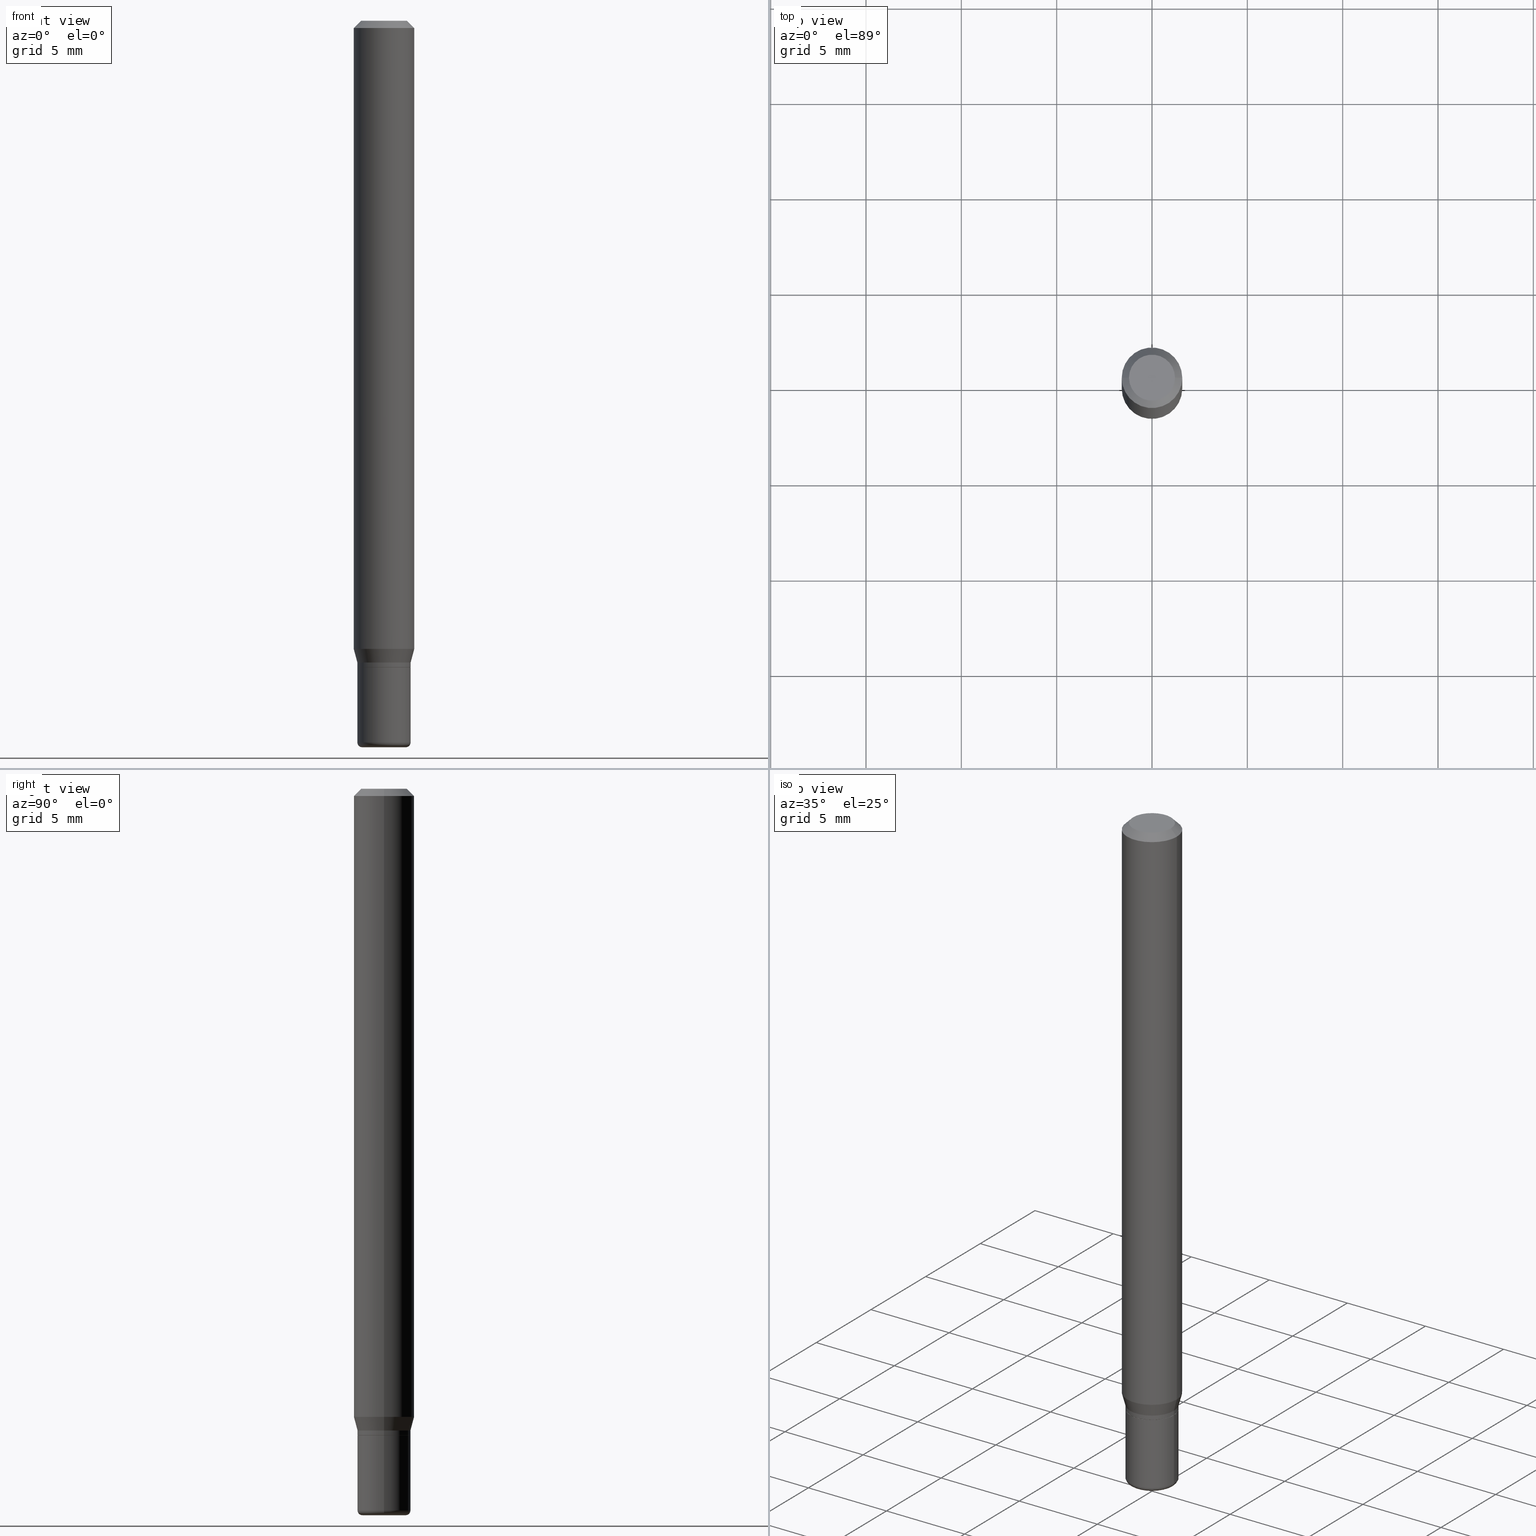
[diagram: canonical four-view strip — front | top / right | iso, engineering-drawing reading convention]
A machine part, canonical four-view strip (front | top / right | iso — engineering-drawing reading convention). The complete STEP part file that produces these views, byte-faithful:
ISO-10303-21;
HEADER;
FILE_DESCRIPTION (( 'STEP AP203' ),
    '1' );
FILE_NAME ('08613.STEP',
    '2024-02-29T19:59:43',
    ( '' ),
    ( '' ),
    'SwSTEP 2.0',
    'SolidWorks 2023',
    '' );
FILE_SCHEMA (( 'CONFIG_CONTROL_DESIGN' ));
ENDSEC;

DATA;
#1 = DIRECTION ( 'NONE',  ( -2.445468806185136597E-29, 3.491481338843145583E-15, 1.000000000000000000 ) ) ;
#2 = DIRECTION ( 'NONE',  ( -0.2588190451025210170, 5.211531920934547886E-15, 0.9659258262890682012 ) ) ;
#3 = CARTESIAN_POINT ( 'NONE',  ( 3.263478121854064398E-29, -4.659381846686176830E-15, -1.334500000000000020 ) ) ;
#4 = DIRECTION ( 'NONE',  ( 1.000000000000000000, -6.982962677686273810E-15, 0.000000000000000000 ) ) ;
#5 = CONICAL_SURFACE ( 'NONE', #28, 0.06250000000000000000, 0.7853981633974488341 ) ;
#6 = ADVANCED_FACE ( 'NONE', ( #397 ), #63, .T. ) ;
#7 = PRODUCT_DEFINITION_SHAPE ( 'NONE', 'NONE',  #337 ) ;
#8 = FACE_OUTER_BOUND ( 'NONE', #151, .T. ) ;
#9 = DIRECTION ( 'NONE',  ( -1.000000000000000000, 6.982962677686266711E-15, 0.000000000000000000 ) ) ;
#10 = CARTESIAN_POINT ( 'NONE',  ( -0.06250000000000000000, 3.840629472727455270E-16, -0.01499999999999970281 ) ) ;
#11 = CARTESIAN_POINT ( 'NONE',  ( 3.240246168195306775E-29, -4.626212773967169051E-15, -1.325000000000000178 ) ) ;
#12 = DIRECTION ( 'NONE',  ( 1.000000000000000000, -6.982962677686266711E-15, 0.000000000000000000 ) ) ;
#13 = LINE ( 'NONE', #223, #466 ) ;
#14 = CIRCLE ( 'NONE', #398, 0.04499999999999999833 ) ;
#15 = DATE_AND_TIME ( #102, #467 ) ;
#16 = DIRECTION ( 'NONE',  ( -2.445468806185136597E-29, 3.491481338843145583E-15, 1.000000000000000000 ) ) ;
#17 = ORIENTED_EDGE ( 'NONE', *, *, #127, .T. ) ;
#18 = CARTESIAN_POINT ( 'NONE',  ( 3.582686580359766038E-29, -5.359686688179453325E-15, -1.500000000000000222 ) ) ;
#19 = APPLICATION_PROTOCOL_DEFINITION ( 'international standard', 'config_control_design', 1994, #394 ) ;
#20 = DIRECTION ( 'NONE',  ( -1.000000000000000000, 6.982962677686266711E-15, 0.000000000000000000 ) ) ;
#21 = VERTEX_POINT ( 'NONE', #486 ) ;
#22 = CC_DESIGN_PERSON_AND_ORGANIZATION_ASSIGNMENT ( #228, #155, ( #83 ) ) ;
#23 = COORDINATED_UNIVERSAL_TIME_OFFSET ( 5, 0, .BEHIND. ) ;
#24 = AXIS2_PLACEMENT_3D ( 'NONE', #321, #165, #482 ) ;
#25 = AXIS2_PLACEMENT_3D ( 'NONE', #38, #84, #268 ) ;
#26 = DIRECTION ( 'NONE',  ( 1.000000000000000000, -6.982962677686265922E-15, 4.876176775795935232E-29 ) ) ;
#27 = DATE_AND_TIME ( #307, #35 ) ;
#28 = AXIS2_PLACEMENT_3D ( 'NONE', #275, #447, #20 ) ;
#29 = AXIS2_PLACEMENT_3D ( 'NONE', #295, #180, #134 ) ;
#30 = EDGE_LOOP ( 'NONE', ( #258, #382 ) ) ;
#31 = COORDINATED_UNIVERSAL_TIME_OFFSET ( 5, 0, .BEHIND. ) ;
#32 = ADVANCED_BREP_SHAPE_REPRESENTATION ( '08613', ( #462, #443, #320 ), #73 ) ;
#33 = EDGE_CURVE ( 'NONE', #492, #54, #293, .T. ) ;
#34 = CONICAL_SURFACE ( 'NONE', #262, 0.05499999999999999334, 0.2617993877991496854 ) ;
#35 = LOCAL_TIME ( 14, 59, 43.00000000000000000, #465 ) ;
#36 = CARTESIAN_POINT ( 'NONE',  ( -0.05449999999999997208, -4.273881796366344571E-15, -1.335000000000000187 ) ) ;
#37 = CARTESIAN_POINT ( 'NONE',  ( 3.264700856257157760E-29, -4.661127587355599122E-15, -1.335000000000000187 ) ) ;
#38 = CARTESIAN_POINT ( 'NONE',  ( 3.264700856257157760E-29, -4.661127587355599122E-15, -1.335000000000000187 ) ) ;
#39 = LINE ( 'NONE', #10, #82 ) ;
#40 = UNCERTAINTY_MEASURE_WITH_UNIT (LENGTH_MEASURE( 1.000000000000000082E-05 ), #505, 'distance_accuracy_value', 'NONE');
#41 = DIRECTION ( 'NONE',  ( -2.445468806185136597E-29, 3.491481338843145583E-15, 1.000000000000000000 ) ) ;
#42 = DIRECTION ( 'NONE',  ( -2.445468806185136597E-29, 3.491481338843145583E-15, 1.000000000000000000 ) ) ;
#43 = FACE_OUTER_BOUND ( 'NONE', #193, .T. ) ;
#44 = AXIS2_PLACEMENT_3D ( 'NONE', #323, #235, #487 ) ;
#45 = LOCAL_TIME ( 14, 59, 43.00000000000000000, #31 ) ;
#46 = CARTESIAN_POINT ( 'NONE',  ( 3.840629472727772786E-16, 0.05499999999999534428, -1.335000000000000409 ) ) ;
#47 = ORIENTED_EDGE ( 'NONE', *, *, #195, .F. ) ;
#48 = DIRECTION ( 'NONE',  ( 1.000000000000000000, -6.982962677686265922E-15, 4.876176775795935793E-29 ) ) ;
#49 = DIRECTION ( 'NONE',  ( 1.000000000000000000, -6.982962677686265922E-15, 4.876176775795935793E-29 ) ) ;
#50 = ORIENTED_EDGE ( 'NONE', *, *, #273, .F. ) ;
#51 = ADVANCED_FACE ( 'NONE', ( #206 ), #280, .T. ) ;
#52 = DIRECTION ( 'NONE',  ( 1.000000000000000000, -6.982962677686269077E-15, 0.000000000000000000 ) ) ;
#53 = AXIS2_PLACEMENT_3D ( 'NONE', #285, #338, #144 ) ;
#54 = VERTEX_POINT ( 'NONE', #236 ) ;
#55 = CIRCLE ( 'NONE', #29, 0.009999999999999953371 ) ;
#56 = DIRECTION ( 'NONE',  ( -2.445468806185136877E-29, 3.491481338843145188E-15, 1.000000000000000000 ) ) ;
#57 = DIRECTION ( 'NONE',  ( 1.000000000000000000, -6.982962677686262766E-15, 0.000000000000000000 ) ) ;
#58 = EDGE_LOOP ( 'NONE', ( #461, #286, #47, #294 ) ) ;
#59 = CALENDAR_DATE ( 2024, 29, 2 ) ;
#60 = FACE_OUTER_BOUND ( 'NONE', #221, .T. ) ;
#61 = ORIENTED_EDGE ( 'NONE', *, *, #220, .F. ) ;
#62 = DATE_TIME_ROLE ( 'creation_date' ) ;
#63 = CONICAL_SURFACE ( 'NONE', #25, 0.05449999999999997208, 0.7853981633972775267 ) ;
#64 =( LENGTH_UNIT ( ) NAMED_UNIT ( * ) SI_UNIT ( $, .METRE. ) );
#65 = CIRCLE ( 'NONE', #92, 0.05499999999999997946 ) ;
#66 = LOCAL_TIME ( 14, 59, 43.00000000000000000, #224 ) ;
#67 = PERSON_AND_ORGANIZATION ( #342, #312 ) ;
#68 = PRODUCT_RELATED_PRODUCT_CATEGORY ( 'detail', '', ( #406 ) ) ;
#69 = EDGE_LOOP ( 'NONE', ( #190, #264 ) ) ;
#70 = COORDINATED_UNIVERSAL_TIME_OFFSET ( 5, 0, .BEHIND. ) ;
#71 = VERTEX_POINT ( 'NONE', #401 ) ;
#72 = VECTOR ( 'NONE', #240, 39.37007874015748143 ) ;
#73 =( GEOMETRIC_REPRESENTATION_CONTEXT ( 3 ) GLOBAL_UNCERTAINTY_ASSIGNED_CONTEXT ( ( #40 ) ) GLOBAL_UNIT_ASSIGNED_CONTEXT ( ( #505, #174, #333 ) ) REPRESENTATION_CONTEXT ( 'NONE', 'WORKASPACE' ) );
#74 = EDGE_LOOP ( 'NONE', ( #191, #299, #277, #154 ) ) ;
#75 = DATE_TIME_ROLE ( 'classification_date' ) ;
#76 = VERTEX_POINT ( 'NONE', #91 ) ;
#77 = EDGE_CURVE ( 'NONE', #141, #396, #318, .T. ) ;
#78 = ADVANCED_FACE ( 'NONE', ( #43 ), #161, .T. ) ;
#79 = APPROVAL_DATE_TIME ( #506, #208 ) ;
#80 = LINE ( 'NONE', #36, #188 ) ;
#81 = CARTESIAN_POINT ( 'NONE',  ( 3.240246168195306775E-29, -4.626212773967169051E-15, -1.325000000000000178 ) ) ;
#82 = VECTOR ( 'NONE', #402, 39.37007874015748143 ) ;
#83 = PRODUCT_DEFINITION_FORMATION_WITH_SPECIFIED_SOURCE ( 'ANY', '', #406, .NOT_KNOWN. ) ;
#84 = DIRECTION ( 'NONE',  ( -2.445468806185136597E-29, 3.491481338843145583E-15, 1.000000000000000000 ) ) ;
#85 = ADVANCED_FACE ( 'NONE', ( #368 ), #207, .T. ) ;
#86 = DIRECTION ( 'NONE',  ( -2.445468806185136877E-29, 3.491481338843145188E-15, 1.000000000000000000 ) ) ;
#87 = DIRECTION ( 'NONE',  ( -0.7071067811864267805, 7.493145998869918709E-15, 0.7071067811866682540 ) ) ;
#88 = LINE ( 'NONE', #124, #72 ) ;
#89 = DIRECTION ( 'NONE',  ( 1.000000000000000000, -6.982962677686265922E-15, 4.876176775795935232E-29 ) ) ;
#90 = DIRECTION ( 'NONE',  ( -2.445468806185136597E-29, 3.491481338843145583E-15, 1.000000000000000000 ) ) ;
#91 = CARTESIAN_POINT ( 'NONE',  ( 0.05449999999999997208, -5.041699053289501100E-15, -1.335000000000000187 ) ) ;
#92 = AXIS2_PLACEMENT_3D ( 'NONE', #424, #135, #249 ) ;
#93 = DIRECTION ( 'NONE',  ( 1.000000000000000000, -6.982962677686273810E-15, 0.000000000000000000 ) ) ;
#94 = DIRECTION ( 'NONE',  ( -2.445468806185136877E-29, 3.491481338843145188E-15, 1.000000000000000000 ) ) ;
#95 = CARTESIAN_POINT ( 'NONE',  ( 3.668203209277704895E-29, -5.237222008264718177E-15, -1.500000000000000222 ) ) ;
#96 = DIRECTION ( 'NONE',  ( -2.445468806185136877E-29, 3.491481338843145188E-15, 1.000000000000000000 ) ) ;
#97 = CIRCLE ( 'NONE', #339, 0.04499999999999999833 ) ;
#98 = SECURITY_CLASSIFICATION ( '', '', #192 ) ;
#99 = CLOSED_SHELL ( 'NONE', ( #436, #226, #350, #103, #51, #227 ) ) ;
#100 = MECHANICAL_CONTEXT ( 'NONE', #394, 'mechanical' ) ;
#101 = CARTESIAN_POINT ( 'NONE',  ( 0.04750000000000000749, -4.035134999187568762E-16, 2.731847993664288856E-16 ) ) ;
#102 = CALENDAR_DATE ( 2024, 29, 2 ) ;
#103 = ADVANCED_FACE ( 'NONE', ( #166 ), #125, .T. ) ;
#104 = DIRECTION ( 'NONE',  ( 0.000000000000000000, 0.000000000000000000, 1.000000000000000000 ) ) ;
#105 = EDGE_CURVE ( 'NONE', #76, #231, #376, .T. ) ;
#106 = AXIS2_PLACEMENT_3D ( 'NONE', #233, #370, #120 ) ;
#107 = AXIS2_PLACEMENT_3D ( 'NONE', #278, #411, #441 ) ;
#108 = ORIENTED_EDGE ( 'NONE', *, *, #105, .T. ) ;
#109 = APPROVAL_ROLE ( '' ) ;
#110 = EDGE_CURVE ( 'NONE', #141, #470, #442, .T. ) ;
#111 = ORIENTED_EDGE ( 'NONE', *, *, #313, .F. ) ;
#112 = ORIENTED_EDGE ( 'NONE', *, *, #412, .F. ) ;
#113 = CIRCLE ( 'NONE', #356, 0.05499999999999995171 ) ;
#114 = EDGE_CURVE ( 'NONE', #21, #492, #488, .T. ) ;
#115 = ORIENTED_EDGE ( 'NONE', *, *, #110, .F. ) ;
#116 = ORIENTED_EDGE ( 'NONE', *, *, #380, .T. ) ;
#117 = FACE_OUTER_BOUND ( 'NONE', #232, .T. ) ;
#118 = EDGE_CURVE ( 'NONE', #231, #514, #80, .T. ) ;
#119 = CARTESIAN_POINT ( 'NONE',  ( -0.06250000000000000000, -1.846339340611439838E-15, -0.01499999999999970281 ) ) ;
#120 = DIRECTION ( 'NONE',  ( 1.000000000000000000, -6.982962677686273810E-15, 0.000000000000000000 ) ) ;
#121 = DIRECTION ( 'NONE',  ( 1.000000000000000000, -6.982962677686263555E-15, 0.000000000000000000 ) ) ;
#122 = EDGE_CURVE ( 'NONE', #348, #471, #427, .T. ) ;
#123 = CARTESIAN_POINT ( 'NONE',  ( -0.05499999999999999334, -4.159904970144704999E-15, -1.325000000000000178 ) ) ;
#124 = CARTESIAN_POINT ( 'NONE',  ( 0.05449999999999997208, -5.041699053289501100E-15, -1.335000000000000187 ) ) ;
#125 = CYLINDRICAL_SURFACE ( 'NONE', #480, 0.05499999999999997946 ) ;
#126 = FACE_OUTER_BOUND ( 'NONE', #301, .T. ) ;
#127 = EDGE_CURVE ( 'NONE', #71, #246, #14, .T. ) ;
#128 = CARTESIAN_POINT ( 'NONE',  ( -0.04750000000000000749, 3.578768372314221353E-16, 2.731847993664239060E-16 ) ) ;
#129 = CIRCLE ( 'NONE', #328, 0.05449999999999997208 ) ;
#130 = EDGE_CURVE ( 'NONE', #231, #76, #129, .T. ) ;
#131 = LOCAL_TIME ( 14, 59, 43.00000000000000000, #70 ) ;
#132 = DIRECTION ( 'NONE',  ( -2.445468806185136597E-29, 3.491481338843145583E-15, 1.000000000000000000 ) ) ;
#133 = FACE_OUTER_BOUND ( 'NONE', #244, .T. ) ;
#134 = DIRECTION ( 'NONE',  ( -1.000000000000000000, 7.105427357600958471E-15, 0.000000000000000000 ) ) ;
#135 = DIRECTION ( 'NONE',  ( -2.445468806185136597E-29, 3.491481338843145583E-15, 1.000000000000000000 ) ) ;
#136 = ORIENTED_EDGE ( 'NONE', *, *, #372, .T. ) ;
#137 = EDGE_CURVE ( 'NONE', #215, #183, #171, .T. ) ;
#138 = PERSON_AND_ORGANIZATION ( #342, #312 ) ;
#139 = DIRECTION ( 'NONE',  ( -2.445468806185136597E-29, 3.491481338843145583E-15, 1.000000000000000000 ) ) ;
#140 = CIRCLE ( 'NONE', #432, 0.05499999999999999334 ) ;
#141 = VERTEX_POINT ( 'NONE', #123 ) ;
#142 = AXIS2_PLACEMENT_3D ( 'NONE', #210, #272, #89 ) ;
#143 = DIRECTION ( 'NONE',  ( -2.445468806185136597E-29, 3.491481338843145583E-15, 1.000000000000000000 ) ) ;
#144 = DIRECTION ( 'NONE',  ( 1.000000000000000000, -6.982962677686269077E-15, 0.000000000000000000 ) ) ;
#145 = ORIENTED_EDGE ( 'NONE', *, *, #110, .T. ) ;
#146 = CYLINDRICAL_SURFACE ( 'NONE', #515, 0.06250000000000000000 ) ;
#147 = CARTESIAN_POINT ( 'NONE',  ( 0.000000000000000000, 0.000000000000000000, 0.000000000000000000 ) ) ;
#148 = DATE_AND_TIME ( #438, #45 ) ;
#149 = ORIENTED_EDGE ( 'NONE', *, *, #118, .F. ) ;
#150 = ORIENTED_EDGE ( 'NONE', *, *, #220, .T. ) ;
#151 = EDGE_LOOP ( 'NONE', ( #17, #510, #50, #495 ) ) ;
#152 = CC_DESIGN_PERSON_AND_ORGANIZATION_ASSIGNMENT ( #138, #415, ( #406 ) ) ;
#153 = ORIENTED_EDGE ( 'NONE', *, *, #273, .T. ) ;
#154 = ORIENTED_EDGE ( 'NONE', *, *, #413, .F. ) ;
#155 = PERSON_AND_ORGANIZATION_ROLE ( 'design_supplier' ) ;
#156 = AXIS2_PLACEMENT_3D ( 'NONE', #284, #204, #367 ) ;
#157 = CC_DESIGN_APPROVAL ( #208, ( #83 ) ) ;
#158 = ORIENTED_EDGE ( 'NONE', *, *, #122, .T. ) ;
#159 = CARTESIAN_POINT ( 'NONE',  ( -6.680649051745406845E-45, 9.538196290434862081E-31, 2.731847993664263218E-16 ) ) ;
#160 = CARTESIAN_POINT ( 'NONE',  ( 0.06250000000000000000, -4.888073874380378612E-16, -0.01499999999999970281 ) ) ;
#161 = CYLINDRICAL_SURFACE ( 'NONE', #142, 0.05499999999999998640 ) ;
#162 = DIRECTION ( 'NONE',  ( -2.445468806185136597E-29, 3.491481338843145583E-15, 1.000000000000000000 ) ) ;
#163 = AXIS2_PLACEMENT_3D ( 'NONE', #217, #456, #288 ) ;
#164 = CARTESIAN_POINT ( 'NONE',  ( 3.668203209277632395E-31, -5.237222008264614861E-17, -0.01499999999999970281 ) ) ;
#165 = DIRECTION ( 'NONE',  ( -2.445468806185136597E-29, 3.491481338843145583E-15, 1.000000000000000000 ) ) ;
#166 = FACE_OUTER_BOUND ( 'NONE', #74, .T. ) ;
#167 = DIRECTION ( 'NONE',  ( -2.445468806185136597E-29, 3.491481338843145583E-15, 1.000000000000000000 ) ) ;
#168 = DIRECTION ( 'NONE',  ( 1.000000000000000000, -6.982962677686263555E-15, 0.000000000000000000 ) ) ;
#169 = FACE_OUTER_BOUND ( 'NONE', #58, .T. ) ;
#170 = DIRECTION ( 'NONE',  ( -2.445468806185136877E-29, 3.491481338843145188E-15, 1.000000000000000000 ) ) ;
#171 = CIRCLE ( 'NONE', #419, 0.04750000000000000749 ) ;
#172 = VECTOR ( 'NONE', #271, 39.37007874015748143 ) ;
#173 = EDGE_LOOP ( 'NONE', ( #108, #457, #374, #511 ) ) ;
#174 =( NAMED_UNIT ( * ) PLANE_ANGLE_UNIT ( ) SI_UNIT ( $, .RADIAN. ) );
#175 = DIRECTION ( 'NONE',  ( -2.445468806185136597E-29, 3.491481338843145583E-15, 1.000000000000000000 ) ) ;
#176 = ADVANCED_FACE ( 'NONE', ( #117 ), #5, .T. ) ;
#177 = ORIENTED_EDGE ( 'NONE', *, *, #260, .T. ) ;
#178 = CARTESIAN_POINT ( 'NONE',  ( 0.000000000000000000, 0.000000000000000000, 0.000000000000000000 ) ) ;
#179 = CARTESIAN_POINT ( 'NONE',  ( 3.643748521215853910E-29, -5.202307194876288105E-15, -1.490000000000000213 ) ) ;
#180 = DIRECTION ( 'NONE',  ( 7.105427357601001859E-15, 1.000000000000000000, -3.491481338843145583E-15 ) ) ;
#181 = CARTESIAN_POINT ( 'NONE',  ( -0.05499999999999998640, 3.907985046680550056E-16, -2.705414299640197311E-30 ) ) ;
#182 = AXIS2_PLACEMENT_3D ( 'NONE', #11, #445, #168 ) ;
#183 = VERTEX_POINT ( 'NONE', #128 ) ;
#184 = PERSON_AND_ORGANIZATION ( #342, #312 ) ;
#185 = LENGTH_MEASURE_WITH_UNIT ( LENGTH_MEASURE( 0.02539999999999999897 ), #64 );
#186 = EDGE_CURVE ( 'NONE', #351, #470, #13, .T. ) ;
#187 = CALENDAR_DATE ( 2024, 29, 2 ) ;
#188 = VECTOR ( 'NONE', #87, 39.37007874015748143 ) ;
#189 = CC_DESIGN_APPROVAL ( #298, ( #98 ) ) ;
#190 = ORIENTED_EDGE ( 'NONE', *, *, #430, .T. ) ;
#191 = ORIENTED_EDGE ( 'NONE', *, *, #504, .F. ) ;
#192 = SECURITY_CLASSIFICATION_LEVEL ( 'unclassified' ) ;
#193 = EDGE_LOOP ( 'NONE', ( #136, #150, #112, #403 ) ) ;
#194 = ORIENTED_EDGE ( 'NONE', *, *, #186, .T. ) ;
#195 = EDGE_CURVE ( 'NONE', #501, #396, #205, .T. ) ;
#196 = ORIENTED_EDGE ( 'NONE', *, *, #380, .F. ) ;
#197 = PERSON_AND_ORGANIZATION_ROLE ( 'classification_officer' ) ;
#198 = AXIS2_PLACEMENT_3D ( 'NONE', #253, #175, #283 ) ;
#199 = DIRECTION ( 'NONE',  ( 1.000000000000000000, -6.982962677686266711E-15, 0.000000000000000000 ) ) ;
#200 = PLANE ( 'NONE',  #489 ) ;
#201 = CARTESIAN_POINT ( 'NONE',  ( 3.643748521215853910E-29, -5.202307194876288105E-15, -1.490000000000000213 ) ) ;
#202 = FACE_OUTER_BOUND ( 'NONE', #69, .T. ) ;
#203 = DIRECTION ( 'NONE',  ( 1.000000000000000000, -6.982962677686269077E-15, 0.000000000000000000 ) ) ;
#204 = DIRECTION ( 'NONE',  ( -2.445468806185136597E-29, 3.491481338843145583E-15, 1.000000000000000000 ) ) ;
#205 = CIRCLE ( 'NONE', #319, 0.06250000000000000000 ) ;
#206 = FACE_OUTER_BOUND ( 'NONE', #435, .T. ) ;
#207 = CONICAL_SURFACE ( 'NONE', #263, 0.06250000000000000000, 0.7853981633974488341 ) ;
#208 = APPROVAL ( #341, 'UNSPECIFIED' ) ;
#209 = LINE ( 'NONE', #446, #459 ) ;
#210 = CARTESIAN_POINT ( 'NONE',  ( 0.000000000000000000, 0.000000000000000000, 0.000000000000000000 ) ) ;
#211 = CARTESIAN_POINT ( 'NONE',  ( 3.240246168195306775E-29, -4.626212773967169051E-15, -1.325000000000000178 ) ) ;
#212 = LINE ( 'NONE', #373, #450 ) ;
#213 = ORIENTED_EDGE ( 'NONE', *, *, #413, .T. ) ;
#214 = APPROVAL_ROLE ( '' ) ;
#215 = VERTEX_POINT ( 'NONE', #101 ) ;
#216 = ADVANCED_FACE ( 'NONE', ( #60 ), #381, .T. ) ;
#217 = CARTESIAN_POINT ( 'NONE',  ( 0.04499999999999999833, -5.516540515372169792E-15, -1.490000000000000213 ) ) ;
#218 = AXIS2_PLACEMENT_3D ( 'NONE', #18, #219, #49 ) ;
#219 = DIRECTION ( 'NONE',  ( -2.438088387897960049E-29, 3.491481338843145188E-15, 1.000000000000000000 ) ) ;
#220 = EDGE_CURVE ( 'NONE', #514, #141, #491, .T. ) ;
#221 = EDGE_LOOP ( 'NONE', ( #310, #512, #332, #111 ) ) ;
#222 = CARTESIAN_POINT ( 'NONE',  ( 0.06250000000000000000, -4.964920048195750682E-15, -1.297009618943233633 ) ) ;
#223 = CARTESIAN_POINT ( 'NONE',  ( 0.05499999999999998640, -3.840629472727445409E-16, 2.681897226687763775E-30 ) ) ;
#224 = COORDINATED_UNIVERSAL_TIME_OFFSET ( 5, 0, .BEHIND. ) ;
#225 = VECTOR ( 'NONE', #170, 39.37007874015748143 ) ;
#226 = ADVANCED_FACE ( 'NONE', ( #133 ), #334, .T. ) ;
#227 = ADVANCED_FACE ( 'NONE', ( #330 ), #248, .F. ) ;
#228 = PERSON_AND_ORGANIZATION ( #342, #312 ) ;
#229 = ORIENTED_EDGE ( 'NONE', *, *, #296, .T. ) ;
#230 = AXIS2_PLACEMENT_3D ( 'NONE', #279, #410, #371 ) ;
#231 = VERTEX_POINT ( 'NONE', #500 ) ;
#232 = EDGE_LOOP ( 'NONE', ( #437, #304, #116, #158 ) ) ;
#233 = CARTESIAN_POINT ( 'NONE',  ( 3.264700856257157760E-29, -4.661127587355599122E-15, -1.335000000000000187 ) ) ;
#234 = AXIS2_PLACEMENT_3D ( 'NONE', #46, #237, #363 ) ;
#235 = DIRECTION ( 'NONE',  ( -2.445468806185136597E-29, 3.491481338843145583E-15, 1.000000000000000000 ) ) ;
#236 = CARTESIAN_POINT ( 'NONE',  ( -0.05500000000000000028, -4.540918886447888559E-15, -1.335000000000000187 ) ) ;
#237 = DIRECTION ( 'NONE',  ( 2.438088387897960049E-29, -3.491481338843145188E-15, -1.000000000000000000 ) ) ;
#238 = ORIENTED_EDGE ( 'NONE', *, *, #504, .T. ) ;
#239 = CARTESIAN_POINT ( 'NONE',  ( 3.668203209277632395E-31, -5.237222008264614861E-17, -0.01499999999999970281 ) ) ;
#240 = DIRECTION ( 'NONE',  ( 0.7071067811864267805, -2.468850131080992517E-15, 0.7071067811866682540 ) ) ;
#241 = CC_DESIGN_PERSON_AND_ORGANIZATION_ASSIGNMENT ( #290, #458, ( #337 ) ) ;
#242 = DIRECTION ( 'NONE',  ( 1.000000000000000000, -6.982962677686268288E-15, 4.883557194083113462E-29 ) ) ;
#243 = DIRECTION ( 'NONE',  ( 1.000000000000000000, -6.982962677686266711E-15, 4.852736867747365086E-29 ) ) ;
#244 = EDGE_LOOP ( 'NONE', ( #153, #238, #391, #474 ) ) ;
#245 = AXIS2_PLACEMENT_3D ( 'NONE', #407, #42, #243 ) ;
#246 = VERTEX_POINT ( 'NONE', #497 ) ;
#247 = FACE_OUTER_BOUND ( 'NONE', #289, .T. ) ;
#248 = PLANE ( 'NONE',  #218 ) ;
#249 = DIRECTION ( 'NONE',  ( 1.000000000000000000, -6.982962677686265133E-15, 0.000000000000000000 ) ) ;
#250 = FACE_OUTER_BOUND ( 'NONE', #266, .T. ) ;
#251 = LINE ( 'NONE', #421, #426 ) ;
#252 = AXIS2_PLACEMENT_3D ( 'NONE', #239, #404, #199 ) ;
#253 = CARTESIAN_POINT ( 'NONE',  ( 0.000000000000000000, 0.000000000000000000, 0.000000000000000000 ) ) ;
#254 = EDGE_LOOP ( 'NONE', ( #265, #145, #355, #392 ) ) ;
#255 = DATE_AND_TIME ( #59, #66 ) ;
#256 = APPLICATION_CONTEXT ( 'configuration controlled 3d designs of mechanical parts and assemblies' ) ;
#257 = DIRECTION ( 'NONE',  ( 1.000000000000000000, 0.000000000000000000, 0.000000000000000000 ) ) ;
#258 = ORIENTED_EDGE ( 'NONE', *, *, #127, .F. ) ;
#259 = ORIENTED_EDGE ( 'NONE', *, *, #518, .F. ) ;
#260 = EDGE_CURVE ( 'NONE', #514, #351, #65, .T. ) ;
#261 = APPROVAL_DATE_TIME ( #27, #298 ) ;
#262 = AXIS2_PLACEMENT_3D ( 'NONE', #211, #167, #400 ) ;
#263 = AXIS2_PLACEMENT_3D ( 'NONE', #164, #479, #9 ) ;
#264 = ORIENTED_EDGE ( 'NONE', *, *, #137, .T. ) ;
#265 = ORIENTED_EDGE ( 'NONE', *, *, #77, .F. ) ;
#266 = EDGE_LOOP ( 'NONE', ( #509, #422, #306, #353 ) ) ;
#267 = EDGE_CURVE ( 'NONE', #335, #21, #281, .T. ) ;
#268 = DIRECTION ( 'NONE',  ( 1.000000000000000000, -6.982962677686273810E-15, 0.000000000000000000 ) ) ;
#269 = CIRCLE ( 'NONE', #366, 0.06250000000000000000 ) ;
#270 = AXIS2_PLACEMENT_3D ( 'NONE', #300, #143, #26 ) ;
#271 = DIRECTION ( 'NONE',  ( 0.7071067811865479058, -7.319954787623257623E-15, -0.7071067811865471286 ) ) ;
#272 = DIRECTION ( 'NONE',  ( -2.445468806185136597E-29, 3.491481338843145583E-15, 1.000000000000000000 ) ) ;
#273 = EDGE_CURVE ( 'NONE', #21, #335, #113, .T. ) ;
#274 = PLANE ( 'NONE',  #230 ) ;
#275 = CARTESIAN_POINT ( 'NONE',  ( 3.668203209277632395E-31, -5.237222008264614861E-17, -0.01499999999999970281 ) ) ;
#276 = FACE_OUTER_BOUND ( 'NONE', #314, .T. ) ;
#277 = ORIENTED_EDGE ( 'NONE', *, *, #114, .T. ) ;
#278 = CARTESIAN_POINT ( 'NONE',  ( 3.264700856257157760E-29, -4.661127587355599122E-15, -1.335000000000000187 ) ) ;
#279 = CARTESIAN_POINT ( 'NONE',  ( 3.316907271900976589E-16, 0.04750000000000000749, -2.925296391183627249E-17 ) ) ;
#280 = TOROIDAL_SURFACE ( 'NONE', #354, 0.04499999999999999833, 0.009999999999999953371 ) ;
#281 = CIRCLE ( 'NONE', #53, 0.05499999999999995171 ) ;
#282 = APPROVAL_PERSON_ORGANIZATION ( #502, #393, #214 ) ;
#283 = DIRECTION ( 'NONE',  ( 1.000000000000000000, -6.982962677686266711E-15, 4.876176775795935793E-29 ) ) ;
#284 = CARTESIAN_POINT ( 'NONE',  ( 3.240246168195306775E-29, -4.626212773967169051E-15, -1.325000000000000178 ) ) ;
#285 = CARTESIAN_POINT ( 'NONE',  ( 3.643748521215853910E-29, -5.202307194876288105E-15, -1.490000000000000213 ) ) ;
#286 = ORIENTED_EDGE ( 'NONE', *, *, #77, .T. ) ;
#287 = LINE ( 'NONE', #425, #451 ) ;
#288 = DIRECTION ( 'NONE',  ( 1.000000000000000000, -6.982962677686269077E-15, 0.000000000000000000 ) ) ;
#289 = EDGE_LOOP ( 'NONE', ( #476, #344 ) ) ;
#290 = PERSON_AND_ORGANIZATION ( #342, #312 ) ;
#291 = DIRECTION ( 'NONE',  ( 1.000000000000000000, -6.982962677686262766E-15, 0.000000000000000000 ) ) ;
#292 = AXIS2_PLACEMENT_3D ( 'NONE', #3, #162, #369 ) ;
#293 = CIRCLE ( 'NONE', #107, 0.05500000000000000028 ) ;
#294 = ORIENTED_EDGE ( 'NONE', *, *, #315, .F. ) ;
#295 = CARTESIAN_POINT ( 'NONE',  ( -0.04499999999999999833, -4.882562963784243527E-15, -1.490000000000000213 ) ) ;
#296 = EDGE_CURVE ( 'NONE', #246, #71, #97, .T. ) ;
#297 = DIRECTION ( 'NONE',  ( 1.000000000000000000, -6.982962677686269077E-15, 0.000000000000000000 ) ) ;
#298 = APPROVAL ( #357, 'UNSPECIFIED' ) ;
#299 = ORIENTED_EDGE ( 'NONE', *, *, #267, .T. ) ;
#300 = CARTESIAN_POINT ( 'NONE',  ( 0.000000000000000000, 0.000000000000000000, 0.000000000000000000 ) ) ;
#301 = EDGE_LOOP ( 'NONE', ( #390, #213 ) ) ;
#302 = PERSON_AND_ORGANIZATION_ROLE ( 'creator' ) ;
#303 = AXIS2_PLACEMENT_3D ( 'NONE', #414, #494, #453 ) ;
#304 = ORIENTED_EDGE ( 'NONE', *, *, #430, .F. ) ;
#305 = EDGE_CURVE ( 'NONE', #71, #21, #389, .T. ) ;
#306 = ORIENTED_EDGE ( 'NONE', *, *, #313, .T. ) ;
#307 = CALENDAR_DATE ( 2024, 29, 2 ) ;
#308 = PERSON_AND_ORGANIZATION ( #342, #312 ) ;
#309 = EDGE_LOOP ( 'NONE', ( #61, #177, #194, #115 ) ) ;
#310 = ORIENTED_EDGE ( 'NONE', *, *, #195, .T. ) ;
#311 = CIRCLE ( 'NONE', #245, 0.04750000000000000749 ) ;
#312 = ORGANIZATION ( 'UNSPECIFIED', 'UNSPECIFIED', '' ) ;
#313 = EDGE_CURVE ( 'NONE', #501, #471, #212, .T. ) ;
#314 = EDGE_LOOP ( 'NONE', ( #149, #468, #455, #434 ) ) ;
#315 = EDGE_CURVE ( 'NONE', #470, #501, #251, .T. ) ;
#316 = DIRECTION ( 'NONE',  ( -2.445468806185136597E-29, 3.491481338843145583E-15, 1.000000000000000000 ) ) ;
#317 = LINE ( 'NONE', #478, #172 ) ;
#318 = LINE ( 'NONE', #408, #347 ) ;
#319 = AXIS2_PLACEMENT_3D ( 'NONE', #378, #16, #57 ) ;
#320 = AXIS2_PLACEMENT_3D ( 'NONE', #178, #104, #257 ) ;
#321 = CARTESIAN_POINT ( 'NONE',  ( 3.264700856257157760E-29, -4.661127587355599122E-15, -1.335000000000000187 ) ) ;
#322 = DIRECTION ( 'NONE',  ( 1.000000000000000000, -6.982962677686265922E-15, 4.876176775795935232E-29 ) ) ;
#323 = CARTESIAN_POINT ( 'NONE',  ( 3.643748521215853910E-29, -5.202307194876288105E-15, -1.490000000000000213 ) ) ;
#324 = CARTESIAN_POINT ( 'NONE',  ( 0.000000000000000000, 0.000000000000000000, 0.000000000000000000 ) ) ;
#325 = DIRECTION ( 'NONE',  ( -2.438088387897960049E-29, 3.491481338843145188E-15, 1.000000000000000000 ) ) ;
#326 = DIRECTION ( 'NONE',  ( -2.445468806185136597E-29, 3.491481338843145583E-15, 1.000000000000000000 ) ) ;
#327 = CARTESIAN_POINT ( 'NONE',  ( -0.06250000000000000000, -4.084395670990297185E-15, -1.297009618943233633 ) ) ;
#328 = AXIS2_PLACEMENT_3D ( 'NONE', #364, #517, #4 ) ;
#329 = DESIGN_CONTEXT ( 'detailed design', #256, 'design' ) ;
#330 = FACE_OUTER_BOUND ( 'NONE', #30, .T. ) ;
#331 = EDGE_CURVE ( 'NONE', #396, #501, #384, .T. ) ;
#332 = ORIENTED_EDGE ( 'NONE', *, *, #405, .F. ) ;
#333 =( NAMED_UNIT ( * ) SI_UNIT ( $, .STERADIAN. ) SOLID_ANGLE_UNIT ( ) );
#334 = CYLINDRICAL_SURFACE ( 'NONE', #303, 0.05499999999999997946 ) ;
#335 = VERTEX_POINT ( 'NONE', #460 ) ;
#336 = CARTESIAN_POINT ( 'NONE',  ( 3.171796564447748341E-29, -4.528484880840359801E-15, -1.297009618943233633 ) ) ;
#337 = PRODUCT_DEFINITION ( 'UNKNOWN', '', #83, #329 ) ;
#338 = DIRECTION ( 'NONE',  ( -2.445468806185136597E-29, 3.491481338843145583E-15, 1.000000000000000000 ) ) ;
#339 = AXIS2_PLACEMENT_3D ( 'NONE', #95, #416, #297 ) ;
#340 = EDGE_LOOP ( 'NONE', ( #433, #417, #349, #196 ) ) ;
#341 = APPROVAL_STATUS ( 'not_yet_approved' ) ;
#342 = PERSON ( 'UNSPECIFIED', 'UNSPECIFIED', 'UNSPECIFIED', ('UNSPECIFIED'), ('UNSPECIFIED'), ('UNSPECIFIED') ) ;
#343 = CC_DESIGN_PERSON_AND_ORGANIZATION_ASSIGNMENT ( #308, #302, ( #83 ) ) ;
#344 = ORIENTED_EDGE ( 'NONE', *, *, #130, .F. ) ;
#345 = VECTOR ( 'NONE', #439, 39.37007874015748143 ) ;
#346 = CC_DESIGN_APPROVAL ( #393, ( #337 ) ) ;
#347 = VECTOR ( 'NONE', #2, 39.37007874015748143 ) ;
#348 = VERTEX_POINT ( 'NONE', #119 ) ;
#349 = ORIENTED_EDGE ( 'NONE', *, *, #405, .T. ) ;
#350 = ADVANCED_FACE ( 'NONE', ( #126 ), #444, .F. ) ;
#351 = VERTEX_POINT ( 'NONE', #485 ) ;
#352 = EDGE_CURVE ( 'NONE', #396, #348, #209, .T. ) ;
#353 = ORIENTED_EDGE ( 'NONE', *, *, #122, .F. ) ;
#354 = AXIS2_PLACEMENT_3D ( 'NONE', #201, #362, #242 ) ;
#355 = ORIENTED_EDGE ( 'NONE', *, *, #315, .T. ) ;
#356 = AXIS2_PLACEMENT_3D ( 'NONE', #179, #454, #52 ) ;
#357 = APPROVAL_STATUS ( 'not_yet_approved' ) ;
#358 = APPROVAL_PERSON_ORGANIZATION ( #184, #208, #469 ) ;
#359 = CARTESIAN_POINT ( 'NONE',  ( 3.668203209277704895E-29, -5.237222008264718177E-15, -1.500000000000000222 ) ) ;
#360 = CARTESIAN_POINT ( 'NONE',  ( 0.05499999999999999334, -5.010275721239913246E-15, -1.325000000000000178 ) ) ;
#361 = CC_DESIGN_DATE_AND_TIME_ASSIGNMENT ( #255, #62, ( #337 ) ) ;
#362 = DIRECTION ( 'NONE',  ( -2.445468806185136597E-29, 3.491481338843145583E-15, 1.000000000000000000 ) ) ;
#363 = DIRECTION ( 'NONE',  ( -1.000000000000000000, 6.982962677686265922E-15, -4.876176775795935793E-29 ) ) ;
#364 = CARTESIAN_POINT ( 'NONE',  ( 3.264700856257157760E-29, -4.661127587355599122E-15, -1.335000000000000187 ) ) ;
#365 = ADVANCED_FACE ( 'NONE', ( #202 ), #274, .F. ) ;
#366 = AXIS2_PLACEMENT_3D ( 'NONE', #490, #132, #12 ) ;
#367 = DIRECTION ( 'NONE',  ( 1.000000000000000000, -6.982962677686263555E-15, 0.000000000000000000 ) ) ;
#368 = FACE_OUTER_BOUND ( 'NONE', #340, .T. ) ;
#369 = DIRECTION ( 'NONE',  ( 1.000000000000000000, -6.982962677686265133E-15, 0.000000000000000000 ) ) ;
#370 = DIRECTION ( 'NONE',  ( -2.445468806185136597E-29, 3.491481338843145583E-15, 1.000000000000000000 ) ) ;
#371 = DIRECTION ( 'NONE',  ( -1.000000000000000000, 6.982962677686265922E-15, -4.876176775795935793E-29 ) ) ;
#372 = EDGE_CURVE ( 'NONE', #351, #514, #473, .T. ) ;
#373 = CARTESIAN_POINT ( 'NONE',  ( 0.06250000000000000000, -4.364351673553916694E-16, 3.047610484872459871E-30 ) ) ;
#374 = ORIENTED_EDGE ( 'NONE', *, *, #372, .F. ) ;
#375 = CARTESIAN_POINT ( 'NONE',  ( 0.05500000000000000028, -5.045190534628344107E-15, -1.335000000000000187 ) ) ;
#376 = CIRCLE ( 'NONE', #106, 0.05449999999999997208 ) ;
#377 = APPROVAL_PERSON_ORGANIZATION ( #67, #298, #109 ) ;
#378 = CARTESIAN_POINT ( 'NONE',  ( 3.171796564447748341E-29, -4.528484880840359801E-15, -1.297009618943233633 ) ) ;
#379 = DIRECTION ( 'NONE',  ( 0.2588190451025210170, 1.565188264969624531E-15, 0.9659258262890682012 ) ) ;
#380 = EDGE_CURVE ( 'NONE', #183, #348, #39, .T. ) ;
#381 = CYLINDRICAL_SURFACE ( 'NONE', #198, 0.06250000000000000000 ) ;
#382 = ORIENTED_EDGE ( 'NONE', *, *, #296, .F. ) ;
#383 = APPROVAL_STATUS ( 'not_yet_approved' ) ;
#384 = CIRCLE ( 'NONE', #507, 0.06250000000000000000 ) ;
#385 = FACE_OUTER_BOUND ( 'NONE', #309, .T. ) ;
#386 = EDGE_CURVE ( 'NONE', #76, #351, #88, .T. ) ;
#387 = ORIENTED_EDGE ( 'NONE', *, *, #305, .T. ) ;
#388 = PERSON_AND_ORGANIZATION ( #342, #312 ) ;
#389 = CIRCLE ( 'NONE', #163, 0.009999999999999953371 ) ;
#390 = ORIENTED_EDGE ( 'NONE', *, *, #33, .T. ) ;
#391 = ORIENTED_EDGE ( 'NONE', *, *, #33, .F. ) ;
#392 = ORIENTED_EDGE ( 'NONE', *, *, #331, .F. ) ;
#393 = APPROVAL ( #383, 'UNSPECIFIED' ) ;
#394 = APPLICATION_CONTEXT ( 'configuration controlled 3d designs of mechanical parts and assemblies' ) ;
#395 = DIMENSIONAL_EXPONENTS ( 1.000000000000000000, 0.000000000000000000, 0.000000000000000000, 0.000000000000000000, 0.000000000000000000, 0.000000000000000000, 0.000000000000000000 ) ;
#396 = VERTEX_POINT ( 'NONE', #327 ) ;
#397 = FACE_OUTER_BOUND ( 'NONE', #173, .T. ) ;
#398 = AXIS2_PLACEMENT_3D ( 'NONE', #359, #41, #203 ) ;
#399 = CONICAL_SURFACE ( 'NONE', #481, 0.05449999999999997208, 0.7853981633972775267 ) ;
#400 = DIRECTION ( 'NONE',  ( 1.000000000000000000, -6.982962677686263555E-15, 0.000000000000000000 ) ) ;
#401 = CARTESIAN_POINT ( 'NONE',  ( 0.04499999999999999833, -5.551455328760600652E-15, -1.500000000000000222 ) ) ;
#402 = DIRECTION ( 'NONE',  ( -0.7071067811865479058, 2.468850131082261005E-15, -0.7071067811865471286 ) ) ;
#403 = ORIENTED_EDGE ( 'NONE', *, *, #186, .F. ) ;
#404 = DIRECTION ( 'NONE',  ( -2.445468806185136597E-29, 3.491481338843145583E-15, 1.000000000000000000 ) ) ;
#405 = EDGE_CURVE ( 'NONE', #471, #348, #269, .T. ) ;
#406 = PRODUCT ( '08613', '08613', '', ( #100 ) ) ;
#407 = CARTESIAN_POINT ( 'NONE',  ( -6.680649051745406845E-45, 9.538196290434862081E-31, 2.731847993664263218E-16 ) ) ;
#408 = CARTESIAN_POINT ( 'NONE',  ( -0.05499999999999999334, -4.235414269299113601E-15, -1.325000000000000178 ) ) ;
#409 = CONICAL_SURFACE ( 'NONE', #156, 0.05499999999999999334, 0.2617993877991496854 ) ;
#410 = DIRECTION ( 'NONE',  ( 2.438088387897960049E-29, -3.491481338843145188E-15, -1.000000000000000000 ) ) ;
#411 = DIRECTION ( 'NONE',  ( -2.445468806185136597E-29, 3.491481338843145583E-15, 1.000000000000000000 ) ) ;
#412 = EDGE_CURVE ( 'NONE', #470, #141, #140, .T. ) ;
#413 = EDGE_CURVE ( 'NONE', #54, #492, #499, .T. ) ;
#414 = CARTESIAN_POINT ( 'NONE',  ( 0.000000000000000000, 0.000000000000000000, 0.000000000000000000 ) ) ;
#415 = PERSON_AND_ORGANIZATION_ROLE ( 'design_owner' ) ;
#416 = DIRECTION ( 'NONE',  ( -2.445468806185136597E-29, 3.491481338843145583E-15, 1.000000000000000000 ) ) ;
#417 = ORIENTED_EDGE ( 'NONE', *, *, #472, .T. ) ;
#418 = DIRECTION ( 'NONE',  ( -2.445468806185136597E-29, 3.491481338843145583E-15, 1.000000000000000000 ) ) ;
#419 = AXIS2_PLACEMENT_3D ( 'NONE', #159, #316, #477 ) ;
#420 = CC_DESIGN_DATE_AND_TIME_ASSIGNMENT ( #148, #75, ( #98 ) ) ;
#421 = CARTESIAN_POINT ( 'NONE',  ( 0.05499999999999999334, -5.010275721239913246E-15, -1.325000000000000178 ) ) ;
#422 = ORIENTED_EDGE ( 'NONE', *, *, #331, .T. ) ;
#423 = DIRECTION ( 'NONE',  ( 1.000000000000000000, -6.982962677686266711E-15, 4.876176775795935793E-29 ) ) ;
#424 = CARTESIAN_POINT ( 'NONE',  ( 3.263478121854064398E-29, -4.659381846686176830E-15, -1.334500000000000020 ) ) ;
#425 = CARTESIAN_POINT ( 'NONE',  ( -0.05499999999999997946, 3.907985046680549563E-16, -2.705414299640196961E-30 ) ) ;
#426 = VECTOR ( 'NONE', #379, 39.37007874015748143 ) ;
#427 = CIRCLE ( 'NONE', #252, 0.06250000000000000000 ) ;
#428 = CC_DESIGN_SECURITY_CLASSIFICATION ( #98, ( #83 ) ) ;
#429 = ORIENTED_EDGE ( 'NONE', *, *, #267, .F. ) ;
#430 = EDGE_CURVE ( 'NONE', #183, #215, #311, .T. ) ;
#431 = ADVANCED_FACE ( 'NONE', ( #169 ), #409, .T. ) ;
#432 = AXIS2_PLACEMENT_3D ( 'NONE', #81, #90, #121 ) ;
#433 = ORIENTED_EDGE ( 'NONE', *, *, #137, .F. ) ;
#434 = ORIENTED_EDGE ( 'NONE', *, *, #260, .F. ) ;
#435 = EDGE_LOOP ( 'NONE', ( #259, #229, #387, #429 ) ) ;
#436 = ADVANCED_FACE ( 'NONE', ( #8 ), #513, .T. ) ;
#437 = ORIENTED_EDGE ( 'NONE', *, *, #472, .F. ) ;
#438 = CALENDAR_DATE ( 2024, 29, 2 ) ;
#439 = DIRECTION ( 'NONE',  ( -2.445468806185136877E-29, 3.491481338843145188E-15, 1.000000000000000000 ) ) ;
#440 = ADVANCED_FACE ( 'NONE', ( #452 ), #34, .T. ) ;
#441 = DIRECTION ( 'NONE',  ( 1.000000000000000000, -6.982962677686262766E-15, 0.000000000000000000 ) ) ;
#442 = CIRCLE ( 'NONE', #182, 0.05499999999999999334 ) ;
#443 = MANIFOLD_SOLID_BREP ( 'Body-Move/Copy2[2]', #475 ) ;
#444 = PLANE ( 'NONE',  #234 ) ;
#445 = DIRECTION ( 'NONE',  ( -2.445468806185136597E-29, 3.491481338843145583E-15, 1.000000000000000000 ) ) ;
#446 = CARTESIAN_POINT ( 'NONE',  ( -0.06250000000000000000, 4.440892098500626162E-16, -3.074334431409316114E-30 ) ) ;
#447 = DIRECTION ( 'NONE',  ( 2.445468806185136597E-29, -3.491481338843145583E-15, -1.000000000000000000 ) ) ;
#448 = CARTESIAN_POINT ( 'NONE',  ( 3.264700856257157760E-29, -4.661127587355599122E-15, -1.335000000000000187 ) ) ;
#449 = ADVANCED_FACE ( 'NONE', ( #276 ), #399, .T. ) ;
#450 = VECTOR ( 'NONE', #96, 39.37007874015748143 ) ;
#451 = VECTOR ( 'NONE', #56, 39.37007874015748143 ) ;
#452 = FACE_OUTER_BOUND ( 'NONE', #254, .T. ) ;
#453 = DIRECTION ( 'NONE',  ( 1.000000000000000000, -6.982962677686265922E-15, 4.876176775795935232E-29 ) ) ;
#454 = DIRECTION ( 'NONE',  ( -2.445468806185136597E-29, 3.491481338843145583E-15, 1.000000000000000000 ) ) ;
#455 = ORIENTED_EDGE ( 'NONE', *, *, #386, .T. ) ;
#456 = DIRECTION ( 'NONE',  ( -6.982962677686266711E-15, -1.000000000000000000, 3.491481338843145583E-15 ) ) ;
#457 = ORIENTED_EDGE ( 'NONE', *, *, #118, .T. ) ;
#458 = PERSON_AND_ORGANIZATION_ROLE ( 'creator' ) ;
#459 = VECTOR ( 'NONE', #86, 39.37007874015748143 ) ;
#460 = CARTESIAN_POINT ( 'NONE',  ( -0.05499999999999995171, -4.540918886447888559E-15, -1.490000000000000213 ) ) ;
#461 = ORIENTED_EDGE ( 'NONE', *, *, #412, .T. ) ;
#462 = MANIFOLD_SOLID_BREP ( 'Body-Move/Copy2[1]', #99 ) ;
#463 = CARTESIAN_POINT ( 'NONE',  ( -0.05499999999999997946, -4.268583342018122169E-15, -1.334500000000000020 ) ) ;
#464 = ADVANCED_FACE ( 'NONE', ( #247 ), #200, .F. ) ;
#465 = COORDINATED_UNIVERSAL_TIME_OFFSET ( 5, 0, .BEHIND. ) ;
#466 = VECTOR ( 'NONE', #94, 39.37007874015748143 ) ;
#467 = LOCAL_TIME ( 14, 59, 43.00000000000000000, #23 ) ;
#468 = ORIENTED_EDGE ( 'NONE', *, *, #130, .T. ) ;
#469 = APPROVAL_ROLE ( '' ) ;
#470 = VERTEX_POINT ( 'NONE', #360 ) ;
#471 = VERTEX_POINT ( 'NONE', #160 ) ;
#472 = EDGE_CURVE ( 'NONE', #215, #471, #317, .T. ) ;
#473 = CIRCLE ( 'NONE', #292, 0.05499999999999997946 ) ;
#474 = ORIENTED_EDGE ( 'NONE', *, *, #114, .F. ) ;
#475 = CLOSED_SHELL ( 'NONE', ( #78, #6, #85, #216, #431, #440, #484, #176, #365, #464, #449, #503 ) ) ;
#476 = ORIENTED_EDGE ( 'NONE', *, *, #105, .F. ) ;
#477 = DIRECTION ( 'NONE',  ( 1.000000000000000000, -6.982962677686266711E-15, 4.852736867747365086E-29 ) ) ;
#478 = CARTESIAN_POINT ( 'NONE',  ( 0.06250000000000000000, -4.811533449433669144E-16, -0.01499999999999970281 ) ) ;
#479 = DIRECTION ( 'NONE',  ( 2.445468806185136597E-29, -3.491481338843145583E-15, -1.000000000000000000 ) ) ;
#480 = AXIS2_PLACEMENT_3D ( 'NONE', #324, #326, #322 ) ;
#481 = AXIS2_PLACEMENT_3D ( 'NONE', #37, #1, #93 ) ;
#482 = DIRECTION ( 'NONE',  ( 1.000000000000000000, -6.982962677686262766E-15, 0.000000000000000000 ) ) ;
#483 = CARTESIAN_POINT ( 'NONE',  ( 0.05499999999999997946, -3.840629472727444916E-16, 2.681897226687763425E-30 ) ) ;
#484 = ADVANCED_FACE ( 'NONE', ( #250 ), #146, .T. ) ;
#485 = CARTESIAN_POINT ( 'NONE',  ( 0.05499999999999997946, -5.043444793958922603E-15, -1.334500000000000020 ) ) ;
#486 = CARTESIAN_POINT ( 'NONE',  ( 0.05499999999999995171, -5.586370142149032301E-15, -1.490000000000000213 ) ) ;
#487 = DIRECTION ( 'NONE',  ( 1.000000000000000000, -6.982962677686268288E-15, 4.883557194083113462E-29 ) ) ;
#488 = LINE ( 'NONE', #483, #345 ) ;
#489 = AXIS2_PLACEMENT_3D ( 'NONE', #448, #325, #48 ) ;
#490 = CARTESIAN_POINT ( 'NONE',  ( 3.668203209277632395E-31, -5.237222008264614861E-17, -0.01499999999999970281 ) ) ;
#491 = LINE ( 'NONE', #181, #225 ) ;
#492 = VERTEX_POINT ( 'NONE', #375 ) ;
#493 = APPROVAL_DATE_TIME ( #15, #393 ) ;
#494 = DIRECTION ( 'NONE',  ( -2.445468806185136597E-29, 3.491481338843145583E-15, 1.000000000000000000 ) ) ;
#495 = ORIENTED_EDGE ( 'NONE', *, *, #305, .F. ) ;
#496 = CYLINDRICAL_SURFACE ( 'NONE', #270, 0.05499999999999998640 ) ;
#497 = CARTESIAN_POINT ( 'NONE',  ( -0.04499999999999999833, -4.864493233690452733E-15, -1.500000000000000222 ) ) ;
#498 = APPLICATION_PROTOCOL_DEFINITION ( 'international standard', 'config_control_design', 1994, #256 ) ;
#499 = CIRCLE ( 'NONE', #24, 0.05500000000000000028 ) ;
#500 = CARTESIAN_POINT ( 'NONE',  ( -0.05449999999999997208, -4.271232569192233370E-15, -1.335000000000000187 ) ) ;
#501 = VERTEX_POINT ( 'NONE', #222 ) ;
#502 = PERSON_AND_ORGANIZATION ( #342, #312 ) ;
#503 = ADVANCED_FACE ( 'NONE', ( #385 ), #496, .T. ) ;
#504 = EDGE_CURVE ( 'NONE', #335, #54, #287, .T. ) ;
#505 =( CONVERSION_BASED_UNIT ( 'INCH', #185 ) LENGTH_UNIT ( ) NAMED_UNIT ( #395 ) );
#506 = DATE_AND_TIME ( #187, #131 ) ;
#507 = AXIS2_PLACEMENT_3D ( 'NONE', #336, #139, #291 ) ;
#508 = CC_DESIGN_PERSON_AND_ORGANIZATION_ASSIGNMENT ( #388, #197, ( #98 ) ) ;
#509 = ORIENTED_EDGE ( 'NONE', *, *, #352, .F. ) ;
#510 = ORIENTED_EDGE ( 'NONE', *, *, #518, .T. ) ;
#511 = ORIENTED_EDGE ( 'NONE', *, *, #386, .F. ) ;
#512 = ORIENTED_EDGE ( 'NONE', *, *, #352, .T. ) ;
#513 = TOROIDAL_SURFACE ( 'NONE', #44, 0.04499999999999999833, 0.009999999999999953371 ) ;
#514 = VERTEX_POINT ( 'NONE', #463 ) ;
#515 = AXIS2_PLACEMENT_3D ( 'NONE', #147, #418, #423 ) ;
#516 = SHAPE_DEFINITION_REPRESENTATION ( #7, #32 ) ;
#517 = DIRECTION ( 'NONE',  ( -2.445468806185136597E-29, 3.491481338843145583E-15, 1.000000000000000000 ) ) ;
#518 = EDGE_CURVE ( 'NONE', #246, #335, #55, .T. ) ;
ENDSEC;
END-ISO-10303-21;
